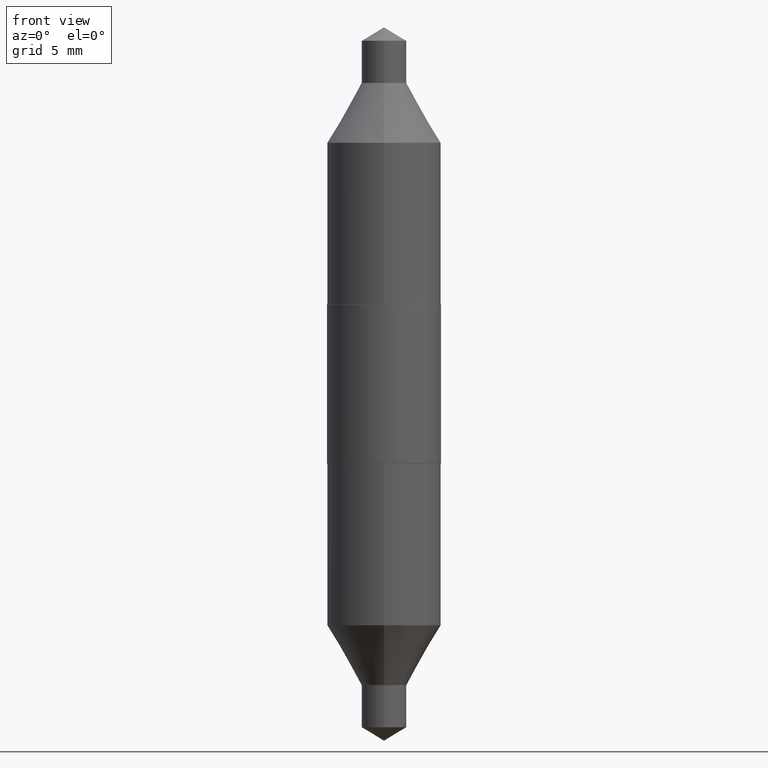
[diagram: clean part render]
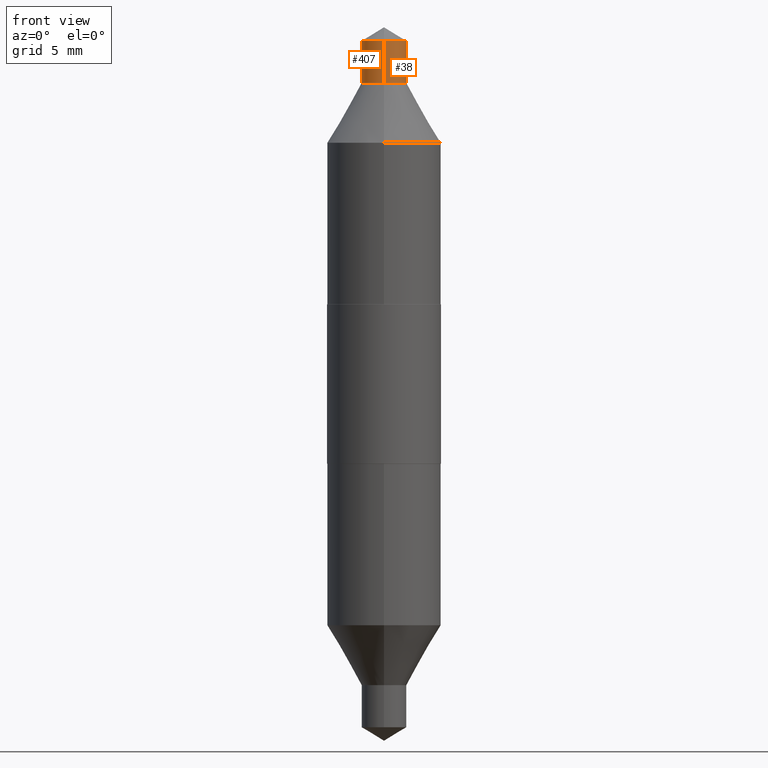
[diagram: same view with one multi-face feature highlighted, each face labeled with its STEP entity id]
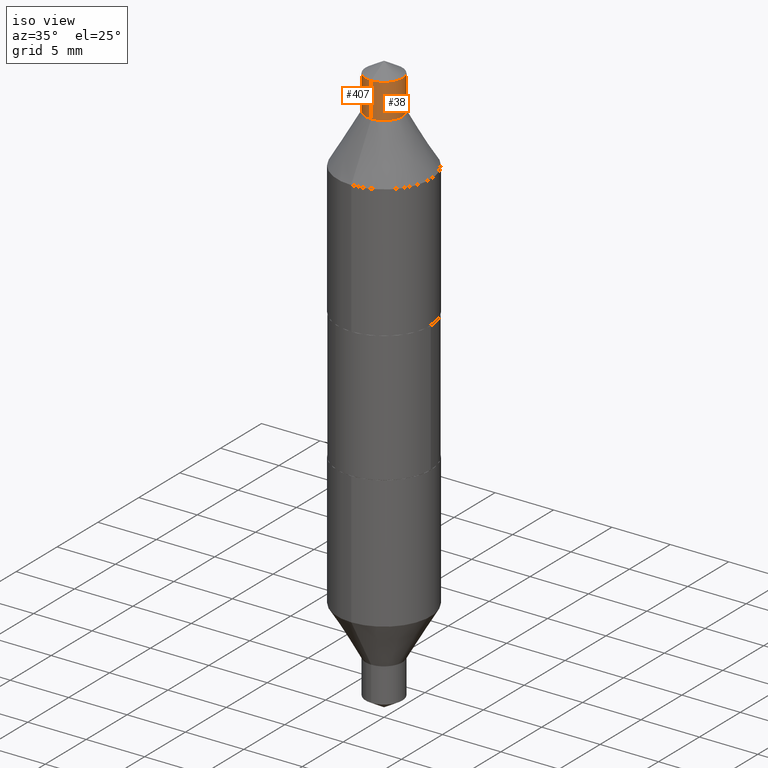
[diagram: same view with one multi-face feature highlighted, each face labeled with its STEP entity id]
A machine part, front view. The highlighted faces form ONE feature: a constant-radius fillet chain: 2 tangent blend faces with common blend radius 1.5748 mm. The faces share edges in the B-rep.
A second angle (iso view) of the same feature is appended — it is thin or edge-on in the first view.
Their STEP definitions:
[1] entity #38 (Cylinder):
#38 = ADVANCED_FACE ( 'NONE', ( #85 ), #157, .T. ) ;
#39 = CARTESIAN_POINT ( 'NONE',  ( -2.327040352225928609E-29, 3.295642098991542367E-15, 0.9477466416202916522 ) ) ;
#85 = FACE_OUTER_BOUND ( 'NONE', #279, .T. ) ;
#95 = CARTESIAN_POINT ( 'NONE',  ( -5.380031373607299336E-30, 7.681258945454920400E-16, 0.2199999999999999734 ) ) ;
#98 = DIRECTION ( 'NONE',  ( -6.982962677686265922E-15, -1.000000000000000000, 3.304654831045479019E-15 ) ) ;
#103 = VECTOR ( 'NONE', #283, 39.37007874015748143 ) ;
#105 = CIRCLE ( 'NONE', #259, 0.06200000000000001343 ) ;
#117 = CIRCLE ( 'NONE', #446, 0.06200000000000000649 ) ;
#142 = EDGE_CURVE ( 'NONE', #213, #462, #329, .T. ) ;
#153 = DIRECTION ( 'NONE',  ( -2.458324247133585070E-29, 3.473071615718708250E-15, 1.000000000000000000 ) ) ;
#157 = CYLINDRICAL_SURFACE ( 'NONE', #585, 0.06200000000000001343 ) ;
#178 = CARTESIAN_POINT ( 'NONE',  ( 4.253508758618117932E-16, 0.06200000000000333716, 0.9477466416202913191 ) ) ;
#187 = VECTOR ( 'NONE', #384, 39.37007874015748143 ) ;
#207 = DIRECTION ( 'NONE',  ( -6.982962677686265922E-15, -1.000000000000000000, 4.406206441393972551E-15 ) ) ;
#213 = VERTEX_POINT ( 'NONE', #310 ) ;
#225 = CARTESIAN_POINT ( 'NONE',  ( 4.253508758618130751E-16, 0.06200000000000290001, 0.8314999999999996838 ) ) ;
#230 = CARTESIAN_POINT ( 'NONE',  ( -2.041268414482917372E-29, 2.891909187557482556E-15, 0.8315000000000000169 ) ) ;
#243 = EDGE_CURVE ( 'NONE', #462, #368, #117, .T. ) ;
#254 = DIRECTION ( 'NONE',  ( -2.458324247133585070E-29, 3.473071615718708250E-15, 1.000000000000000000 ) ) ;
#259 = AXIS2_PLACEMENT_3D ( 'NONE', #39, #153, #578 ) ;
#279 = EDGE_LOOP ( 'NONE', ( #650, #605, #300, #642 ) ) ;
#283 = DIRECTION ( 'NONE',  ( 2.458324247133584790E-29, -3.473071615718708644E-15, -1.000000000000000000 ) ) ;
#286 = CARTESIAN_POINT ( 'NONE',  ( 4.253508758618295918E-16, 0.06200000000000078365, 0.2199999999999997791 ) ) ;
#297 = EDGE_CURVE ( 'NONE', #326, #368, #499, .T. ) ;
#300 = ORIENTED_EDGE ( 'NONE', *, *, #142, .T. ) ;
#310 = CARTESIAN_POINT ( 'NONE',  ( -4.329436860165720816E-16, -0.06199999999999673828, 0.9477466416202918742 ) ) ;
#326 = VERTEX_POINT ( 'NONE', #178 ) ;
#329 = LINE ( 'NONE', #657, #187 ) ;
#368 = VERTEX_POINT ( 'NONE', #225 ) ;
#384 = DIRECTION ( 'NONE',  ( 2.458324247133584790E-29, -3.473071615718708644E-15, -1.000000000000000000 ) ) ;
#446 = AXIS2_PLACEMENT_3D ( 'NONE', #230, #254, #207 ) ;
#462 = VERTEX_POINT ( 'NONE', #558 ) ;
#499 = LINE ( 'NONE', #286, #103 ) ;
#558 = CARTESIAN_POINT ( 'NONE',  ( -4.329436860165689754E-16, -0.06199999999999711298, 0.8315000000000002389 ) ) ;
#578 = DIRECTION ( 'NONE',  ( -6.982962677686265922E-15, -1.000000000000000000, 4.406206441393971762E-15 ) ) ;
#585 = AXIS2_PLACEMENT_3D ( 'NONE', #95, #678, #98 ) ;
#605 = ORIENTED_EDGE ( 'NONE', *, *, #649, .F. ) ;
#642 = ORIENTED_EDGE ( 'NONE', *, *, #243, .T. ) ;
#649 = EDGE_CURVE ( 'NONE', #213, #326, #105, .T. ) ;
#650 = ORIENTED_EDGE ( 'NONE', *, *, #297, .F. ) ;
#657 = CARTESIAN_POINT ( 'NONE',  ( -4.329436860165539871E-16, -0.06199999999999924322, 0.2200000000000001676 ) ) ;
#678 = DIRECTION ( 'NONE',  ( 2.458324247133585070E-29, -3.473071615718708250E-15, -1.000000000000000000 ) ) ;
[2] entity #407 (Cylinder):
#18 = CARTESIAN_POINT ( 'NONE',  ( -5.380031373607299336E-30, 7.681258945454920400E-16, 0.2199999999999999734 ) ) ;
#88 = ORIENTED_EDGE ( 'NONE', *, *, #451, .F. ) ;
#103 = VECTOR ( 'NONE', #283, 39.37007874015748143 ) ;
#132 = FACE_OUTER_BOUND ( 'NONE', #500, .T. ) ;
#135 = DIRECTION ( 'NONE',  ( -2.458324247133585070E-29, 3.473071615718708250E-15, 1.000000000000000000 ) ) ;
#142 = EDGE_CURVE ( 'NONE', #213, #462, #329, .T. ) ;
#178 = CARTESIAN_POINT ( 'NONE',  ( 4.253508758618117932E-16, 0.06200000000000333716, 0.9477466416202913191 ) ) ;
#187 = VECTOR ( 'NONE', #384, 39.37007874015748143 ) ;
#213 = VERTEX_POINT ( 'NONE', #310 ) ;
#225 = CARTESIAN_POINT ( 'NONE',  ( 4.253508758618130751E-16, 0.06200000000000290001, 0.8314999999999996838 ) ) ;
#229 = DIRECTION ( 'NONE',  ( 2.458324247133585070E-29, -3.473071615718708250E-15, -1.000000000000000000 ) ) ;
#237 = ORIENTED_EDGE ( 'NONE', *, *, #297, .T. ) ;
#245 = DIRECTION ( 'NONE',  ( -6.982962677686265922E-15, -1.000000000000000000, 3.304654831045479019E-15 ) ) ;
#246 = CARTESIAN_POINT ( 'NONE',  ( -2.041268414482917372E-29, 2.891909187557482556E-15, 0.8315000000000000169 ) ) ;
#260 = DIRECTION ( 'NONE',  ( -2.458324247133585070E-29, 3.473071615718708250E-15, 1.000000000000000000 ) ) ;
#283 = DIRECTION ( 'NONE',  ( 2.458324247133584790E-29, -3.473071615718708644E-15, -1.000000000000000000 ) ) ;
#286 = CARTESIAN_POINT ( 'NONE',  ( 4.253508758618295918E-16, 0.06200000000000078365, 0.2199999999999997791 ) ) ;
#297 = EDGE_CURVE ( 'NONE', #326, #368, #499, .T. ) ;
#310 = CARTESIAN_POINT ( 'NONE',  ( -4.329436860165720816E-16, -0.06199999999999673828, 0.9477466416202918742 ) ) ;
#326 = VERTEX_POINT ( 'NONE', #178 ) ;
#329 = LINE ( 'NONE', #657, #187 ) ;
#347 = CYLINDRICAL_SURFACE ( 'NONE', #694, 0.06200000000000001343 ) ;
#368 = VERTEX_POINT ( 'NONE', #225 ) ;
#384 = DIRECTION ( 'NONE',  ( 2.458324247133584790E-29, -3.473071615718708644E-15, -1.000000000000000000 ) ) ;
#407 = ADVANCED_FACE ( 'NONE', ( #132 ), #347, .T. ) ;
#451 = EDGE_CURVE ( 'NONE', #326, #213, #695, .T. ) ;
#459 = DIRECTION ( 'NONE',  ( -6.982962677686265922E-15, -1.000000000000000000, 4.406206441393971762E-15 ) ) ;
#461 = AXIS2_PLACEMENT_3D ( 'NONE', #666, #135, #459 ) ;
#462 = VERTEX_POINT ( 'NONE', #558 ) ;
#470 = DIRECTION ( 'NONE',  ( -6.982962677686265922E-15, -1.000000000000000000, 4.406206441393972551E-15 ) ) ;
#499 = LINE ( 'NONE', #286, #103 ) ;
#500 = EDGE_LOOP ( 'NONE', ( #88, #237, #628, #547 ) ) ;
#547 = ORIENTED_EDGE ( 'NONE', *, *, #142, .F. ) ;
#558 = CARTESIAN_POINT ( 'NONE',  ( -4.329436860165689754E-16, -0.06199999999999711298, 0.8315000000000002389 ) ) ;
#622 = CIRCLE ( 'NONE', #623, 0.06200000000000000649 ) ;
#623 = AXIS2_PLACEMENT_3D ( 'NONE', #246, #260, #470 ) ;
#628 = ORIENTED_EDGE ( 'NONE', *, *, #676, .T. ) ;
#657 = CARTESIAN_POINT ( 'NONE',  ( -4.329436860165539871E-16, -0.06199999999999924322, 0.2200000000000001676 ) ) ;
#666 = CARTESIAN_POINT ( 'NONE',  ( -2.327040352225928609E-29, 3.295642098991542367E-15, 0.9477466416202916522 ) ) ;
#676 = EDGE_CURVE ( 'NONE', #368, #462, #622, .T. ) ;
#694 = AXIS2_PLACEMENT_3D ( 'NONE', #18, #229, #245 ) ;
#695 = CIRCLE ( 'NONE', #461, 0.06200000000000001343 ) ;